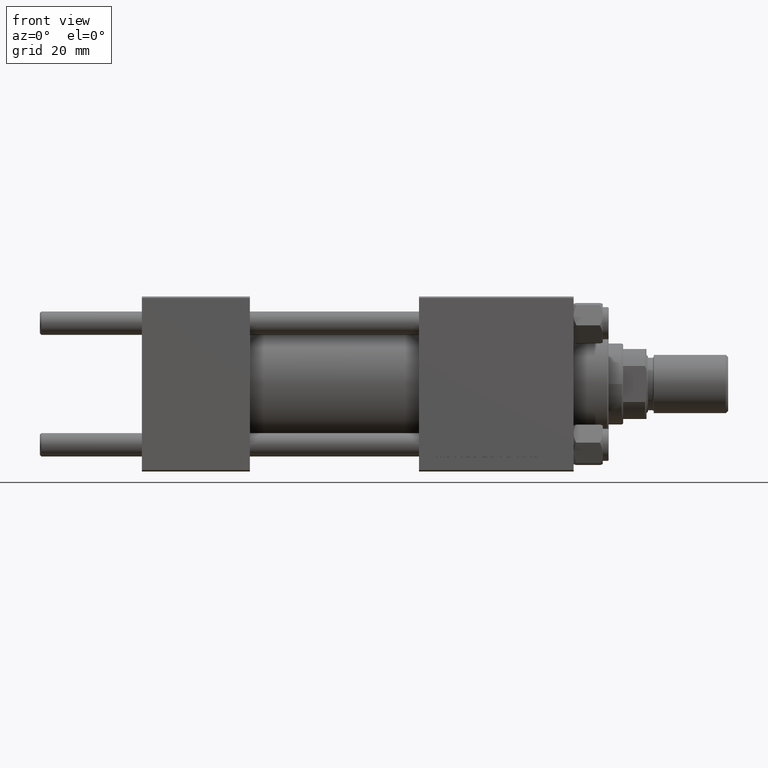
[diagram: clean part render]
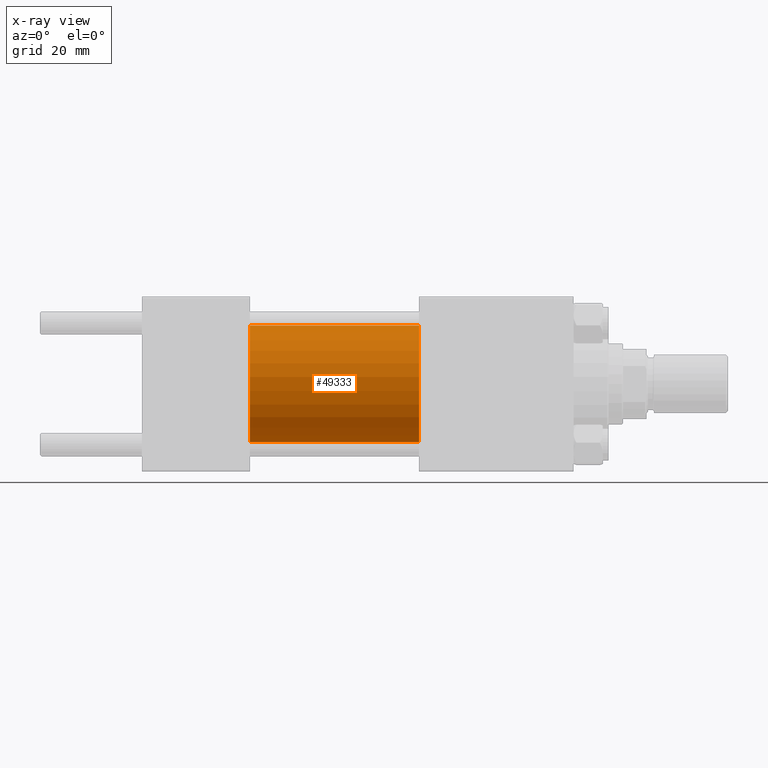
[diagram: x-ray — body ghosted, one internal face saturated and labeled with its STEP entity id]
A machine part, front view, then the same camera in x-ray: the body is ghosted and one INTERNAL B-rep face — a face not visible from any outside direction — is saturated and labeled: STEP entity #49333.
In plain terms, the highlighted cylindrical surface (partial cylindrical patch) has radius 20 mm, axis along (-1, -0, -0).
Its self-contained STEP definition (entity closure, byte-faithful):
#2636 = VERTEX_POINT ( 'NONE', #25612 ) ;
#3043 = VERTEX_POINT ( 'NONE', #10939 ) ;
#7242 = DIRECTION ( 'NONE',  ( 1.000000000000000000, 0.000000000000000000, 0.000000000000000000 ) ) ;
#8115 = ORIENTED_EDGE ( 'NONE', *, *, #19157, .F. ) ;
#8631 = CARTESIAN_POINT ( 'NONE',  ( 37.00000000000000000, 0.000000000000000000, 20.00000000000000000 ) ) ;
#9506 = CARTESIAN_POINT ( 'NONE',  ( 95.00000000000000000, 0.000000000000000000, 20.00000000000000000 ) ) ;
#10405 = ORIENTED_EDGE ( 'NONE', *, *, #45714, .T. ) ;
#10939 = CARTESIAN_POINT ( 'NONE',  ( 95.00000000000000000, 0.000000000000000000, 20.00000000000000000 ) ) ;
#11120 = AXIS2_PLACEMENT_3D ( 'NONE', #22923, #33444, #21930 ) ;
#12040 = FACE_OUTER_BOUND ( 'NONE', #19265, .T. ) ;
#12651 = VECTOR ( 'NONE', #15068, 1000.000000000000000 ) ;
#13319 = LINE ( 'NONE', #9506, #12651 ) ;
#14400 = DIRECTION ( 'NONE',  ( 0.000000000000000000, 0.000000000000000000, -1.000000000000000000 ) ) ;
#15068 = DIRECTION ( 'NONE',  ( -1.000000000000000000, -0.000000000000000000, -0.000000000000000000 ) ) ;
#16136 = DIRECTION ( 'NONE',  ( -1.000000000000000000, -0.000000000000000000, -0.000000000000000000 ) ) ;
#19085 = VERTEX_POINT ( 'NONE', #32133 ) ;
#19157 = EDGE_CURVE ( 'NONE', #20743, #2636, #21252, .T. ) ;
#19265 = EDGE_LOOP ( 'NONE', ( #42527, #10405, #8115, #21866 ) ) ;
#20743 = VERTEX_POINT ( 'NONE', #8631 ) ;
#21252 = CIRCLE ( 'NONE', #35119, 20.00000000000000000 ) ;
#21866 = ORIENTED_EDGE ( 'NONE', *, *, #41702, .F. ) ;
#21930 = DIRECTION ( 'NONE',  ( 0.000000000000000000, 0.000000000000000000, -1.000000000000000000 ) ) ;
#22923 = CARTESIAN_POINT ( 'NONE',  ( 95.00000000000000000, 0.000000000000000000, 0.000000000000000000 ) ) ;
#25612 = CARTESIAN_POINT ( 'NONE',  ( 37.00000000000000000, 2.449293598294706119E-15, -20.00000000000000000 ) ) ;
#27891 = CYLINDRICAL_SURFACE ( 'NONE', #38957, 20.00000000000000000 ) ;
#30699 = DIRECTION ( 'NONE',  ( -1.000000000000000000, -0.000000000000000000, -0.000000000000000000 ) ) ;
#32133 = CARTESIAN_POINT ( 'NONE',  ( 95.00000000000000000, 2.449293598294706119E-15, -20.00000000000000000 ) ) ;
#33444 = DIRECTION ( 'NONE',  ( 1.000000000000000000, 0.000000000000000000, 0.000000000000000000 ) ) ;
#34301 = CARTESIAN_POINT ( 'NONE',  ( 95.00000000000000000, 2.449293598294706119E-15, -20.00000000000000000 ) ) ;
#35081 = DIRECTION ( 'NONE',  ( 0.000000000000000000, 0.000000000000000000, 1.000000000000000000 ) ) ;
#35119 = AXIS2_PLACEMENT_3D ( 'NONE', #45859, #7242, #14400 ) ;
#36522 = VECTOR ( 'NONE', #30699, 1000.000000000000000 ) ;
#38917 = CARTESIAN_POINT ( 'NONE',  ( 95.00000000000000000, 0.000000000000000000, 0.000000000000000000 ) ) ;
#38957 = AXIS2_PLACEMENT_3D ( 'NONE', #38917, #16136, #35081 ) ;
#41480 = LINE ( 'NONE', #34301, #36522 ) ;
#41702 = EDGE_CURVE ( 'NONE', #3043, #20743, #13319, .T. ) ;
#42527 = ORIENTED_EDGE ( 'NONE', *, *, #46798, .T. ) ;
#45537 = CIRCLE ( 'NONE', #11120, 20.00000000000000000 ) ;
#45714 = EDGE_CURVE ( 'NONE', #19085, #2636, #41480, .T. ) ;
#45859 = CARTESIAN_POINT ( 'NONE',  ( 37.00000000000000000, 0.000000000000000000, 0.000000000000000000 ) ) ;
#46798 = EDGE_CURVE ( 'NONE', #3043, #19085, #45537, .T. ) ;
#49333 = ADVANCED_FACE ( 'NONE', ( #12040 ), #27891, .F. ) ;